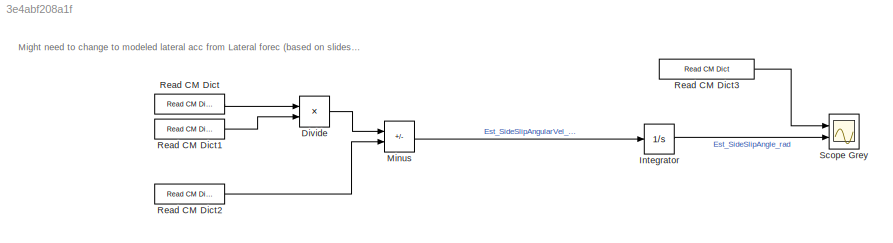
MODEL slx_3e4abf208a1f
KIND model
CONFIG AbsTol = auto
CONFIG EnableMultiTasking = off
CONFIG FixedStep = auto
CONFIG MaxStep = auto
CONFIG MinStep = auto
CONFIG RelTol = 1e-3
CONFIG SampleTimeConstraint = Unconstrained
CONFIG SolverName = FixedStepAuto
CONFIG StartTime = 0.0
CONFIG StopTime = 10.0
BLOCK [Product] Divide
  Inputs = */
  Ports = [2, 1]
BLOCK [Integrator] Integrator
  Ports = [1, 1]
BLOCK [Sum] Minus
  IconShape = rectangular
  Inputs = +-
  Ports = [2, 1]
BLOCK [Reference] Read CM Dict  REF=CarMaker4SL/Read CM Dict
  Ports = [0, 1]
  SourceBlock = CarMaker4SL/Read CM Dict
  SourceProductName = CarMaker4SL
  SourceType = Read CarMaker Dictionary Variable(s)
BLOCK [Reference] Read CM Dict1  REF=CarMaker4SL/Read CM Dict
  Ports = [0, 1]
  SourceBlock = CarMaker4SL/Read CM Dict
  SourceProductName = CarMaker4SL
  SourceType = Read CarMaker Dictionary Variable(s)
BLOCK [Reference] Read CM Dict2  REF=CarMaker4SL/Read CM Dict
  Ports = [0, 1]
  SourceBlock = CarMaker4SL/Read CM Dict
  SourceProductName = CarMaker4SL
  SourceType = Read CarMaker Dictionary Variable(s)
BLOCK [Reference] Read CM Dict3  REF=CarMaker4SL/Read CM Dict
  Ports = [0, 1]
  SourceBlock = CarMaker4SL/Read CM Dict
  SourceProductName = CarMaker4SL
  SourceType = Read CarMaker Dictionary Variable(s)
BLOCK [Scope] Scope Grey
  Floating = off
  NumInputPorts = 2
  Ports = [2]
  ScopeSpecificationString = Simulink.scopes.TimeScopeBlockCfg('CurrentConfiguration', extmgr.ConfigurationSet(extmgr.Configuration('Core','General UI',true,'FigureColor',[0.941176470588235 0.941176470588235 0.941176470588235]),extmgr.Configuration('Core','Source UI',true),extmgr.Configuration('Sources','WiredSimulink',true),extmgr.Configuration('Visuals','Time Domain',true,'SerializedDisplays',{struct('MinYLimReal','-9.96506...<+2130ch>
ANNOTATION (root): Might need to change to modeled lateral acc from Lateral forec (based on slideslip angle, yaw vel, longitudinal velocity)
LINE Divide:1 -> Minus:1
LINE Integrator:1 -> Scope Grey:2
LINE Minus:1 -> Integrator:1
LINE Read CM Dict1:1 -> Divide:2
LINE Read CM Dict2:1 -> Minus:2
LINE Read CM Dict3:1 -> Scope Grey:1
LINE Read CM Dict:1 -> Divide:1
